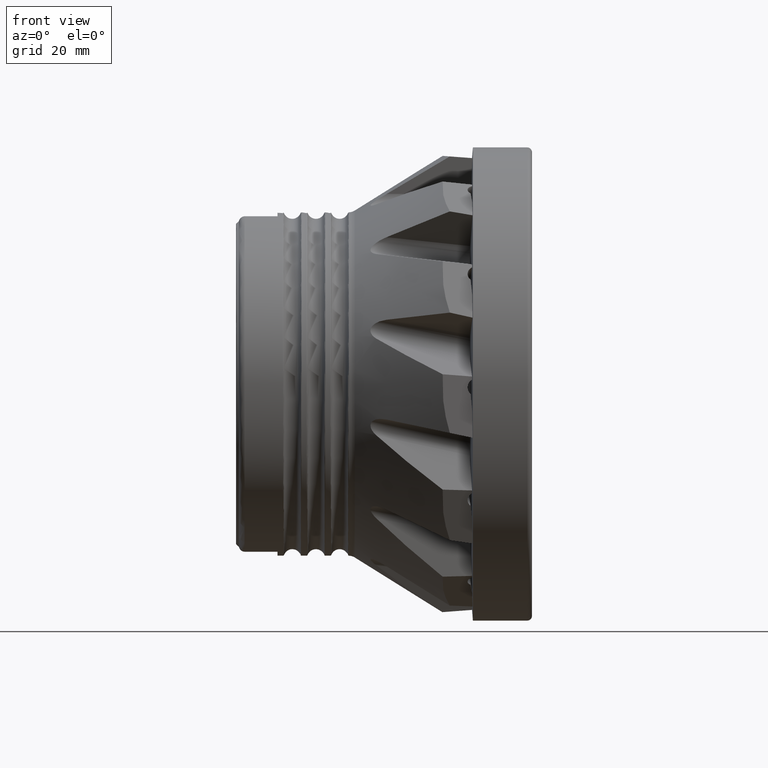
[diagram: clean part render]
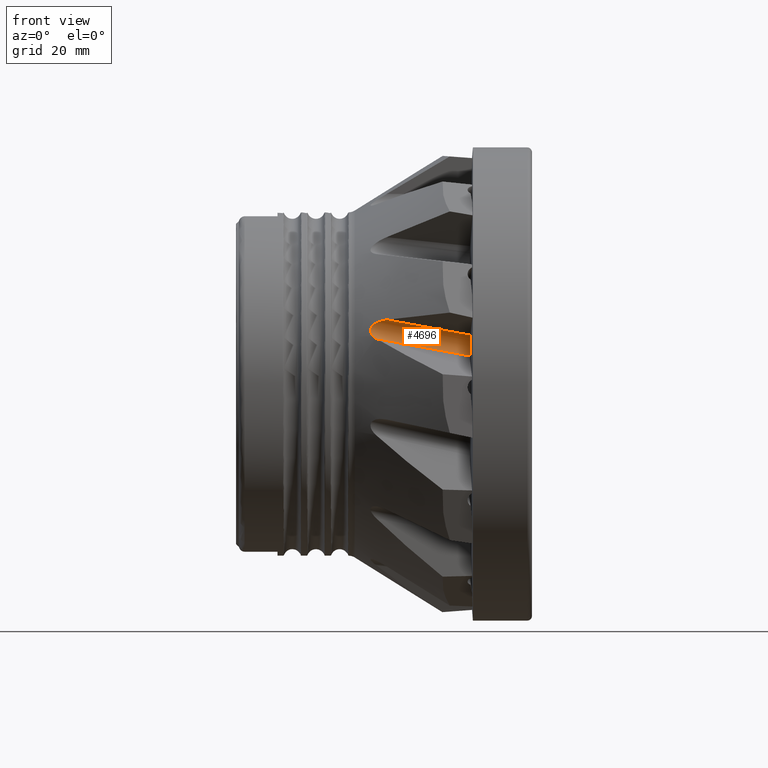
[diagram: same view with one face highlighted and labeled with its STEP entity id]
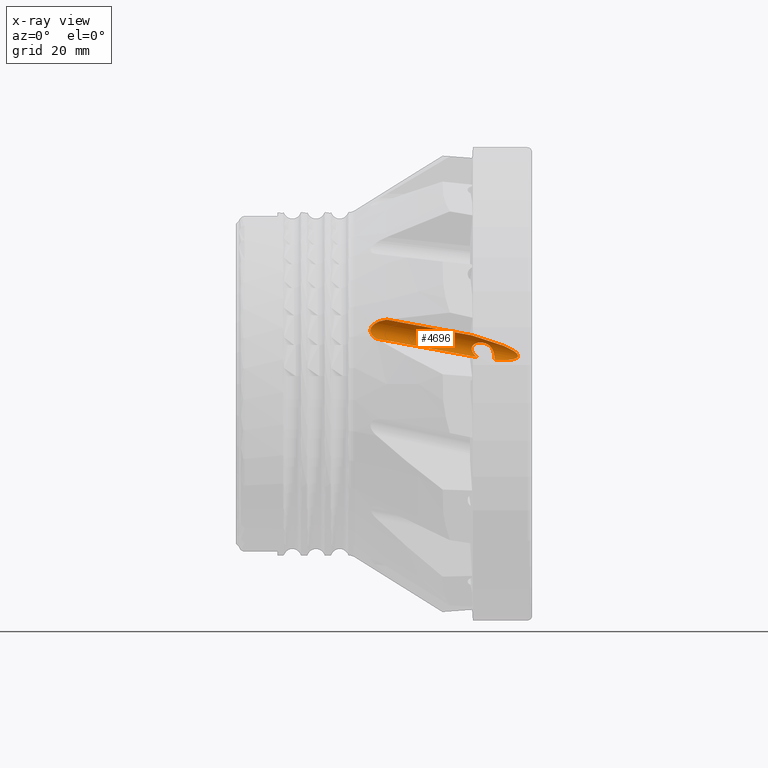
[diagram: x-ray of the same camera — body ghosted, the highlighted face saturated]
A machine part, front view. The second image highlights one B-rep face of the part: STEP entity #4696.
The next image is the same camera in x-ray: the body ghosted, the highlighted face saturated — about 0% of this face is hidden behind the body in this view.
In plain terms, the highlighted cylindrical surface (edge-blend (fillet) strip) has radius 2 mm, axis along (0.9781, -0.104, -0.1801).
Its self-contained STEP definition (entity closure, byte-faithful):
#14 = CARTESIAN_POINT ( 'NONE',  ( -3.768024339980302200, -32.50702467270754400, 4.004092392413642900 ) ) ;
#26 = CARTESIAN_POINT ( 'NONE',  ( -5.941598428582910400, -31.75197113493181800, 5.479450477798537600 ) ) ;
#49 = CARTESIAN_POINT ( 'NONE',  ( -8.706163331426138200, -31.52752429092652200, 6.920448757325848600 ) ) ;
#77 = CARTESIAN_POINT ( 'NONE',  ( -9.459359310625448100, -31.62515865549210400, 5.425309665914401300 ) ) ;
#127 = DIRECTION ( 'NONE',  ( 0.9781476007338082400, -0.1039558454088717300, -0.1800568059919455400 ) ) ;
#463 = EDGE_CURVE ( 'NONE', #6415, #3839, #8625, .T. ) ;
#603 = CARTESIAN_POINT ( 'NONE',  ( -23.95634381777281200, -30.80674944778234800, 10.85535438039640400 ) ) ;
#672 = CARTESIAN_POINT ( 'NONE',  ( -26.65831131541637000, -29.55541260701981400, 9.278411729230290600 ) ) ;
#686 = CARTESIAN_POINT ( 'NONE',  ( -5.493808748235614400, -32.19077755532535400, 6.954178745138207800 ) ) ;
#715 = CARTESIAN_POINT ( 'NONE',  ( -1.768125863742565200, -32.19346259603339200, 4.763641661216908600 ) ) ;
#742 = CARTESIAN_POINT ( 'NONE',  ( -5.111391818651620500, -32.65030233097949300, 3.987913701040926900 ) ) ;
#760 = CARTESIAN_POINT ( 'NONE',  ( -6.164926617308784900, -31.70738443793565200, 5.977610459255645400 ) ) ;
#782 = B_SPLINE_CURVE_WITH_KNOTS ( 'NONE', 3,
 ( #6496, #1449, #2927, #7953, #3661, #8682, #4376, #26, #5075, #760, #5804, #1480, #6522, #2220, #7239, #2955, #7981, #3685, #8710, #4404, #49, #5105, #792, #5831, #1503, #6552, #2251, #7254, #2978, #8008, #3715, #8732, #4434, #77, #5128, #819, #5859, #1531, #6577, #2277 ),
 .UNSPECIFIED., .F., .F.,
 ( 4, 2, 2, 2, 2, 2, 2, 2, 2, 2, 2, 2, 2, 2, 2, 2, 2, 2, 2, 4 ),
 ( 0.01069277896925567900, 0.01123377196301753600, 0.01177476495677939200, 0.01231575795054125000, 0.01285675094430310600, 0.01339774393806496300, 0.01393873693182682100, 0.01447972992558867700, 0.01502072291935053300, 0.01556171591311239200, 0.01610270890687424600, 0.01637320540375517700, 0.01664370190063610400, 0.01691419839751703200, 0.01718469489439796200, 0.01745519139127889000, 0.01772568788815981700, 0.01826668088192168200, 0.01880767387568355000, 0.01934866686944541500 ),
 .UNSPECIFIED. ) ;
#792 = CARTESIAN_POINT ( 'NONE',  ( -9.037512306617417200, -31.44377242681366300, 6.786603852662406800 ) ) ;
#819 = CARTESIAN_POINT ( 'NONE',  ( -9.203964922465550200, -31.90386342204019200, 5.028382161812589700 ) ) ;
#875 = LINE ( 'NONE', #3266, #973 ) ;
#973 = VECTOR ( 'NONE', #7535, 1000.000000000000200 ) ;
#1159 = FACE_OUTER_BOUND ( 'NONE', #7365, .T. ) ;
#1380 = CARTESIAN_POINT ( 'NONE',  ( -26.68416005009187200, -29.64916848669366800, 8.918439745501229900 ) ) ;
#1398 = CARTESIAN_POINT ( 'NONE',  ( -4.001438254549468000, -32.15259269996838800, 6.371570694593916800 ) ) ;
#1433 = CARTESIAN_POINT ( 'NONE',  ( -1.814091712693326700, -32.22708483423738100, 4.564918166406148900 ) ) ;
#1449 = CARTESIAN_POINT ( 'NONE',  ( -5.687351227808548500, -32.55684845016198600, 4.115083248091042200 ) ) ;
#1480 = CARTESIAN_POINT ( 'NONE',  ( -6.505074259793316200, -31.72954038400540400, 6.405023206519636000 ) ) ;
#1503 = CARTESIAN_POINT ( 'NONE',  ( -9.263507455957217500, -31.38973474506207100, 6.638513457409267500 ) ) ;
#1531 = CARTESIAN_POINT ( 'NONE',  ( -8.906881753381963300, -32.22285516468312500, 4.705044862810083800 ) ) ;
#1779 = ORIENTED_EDGE ( 'NONE', *, *, #2074, .F. ) ;
#1895 = DIRECTION ( 'NONE',  ( 0.9781476007338082400, -0.1039558454088717500, -0.1800568059919455100 ) ) ;
#2040 = EDGE_CURVE ( 'NONE', #3839, #3143, #875, .T. ) ;
#2074 = EDGE_CURVE ( 'NONE', #6415, #4715, #2137, .T. ) ;
#2098 = CARTESIAN_POINT ( 'NONE',  ( -24.79447797462460600, -30.30089454031148600, 10.71749052872232800 ) ) ;
#2115 = ORIENTED_EDGE ( 'NONE', *, *, #2040, .T. ) ;
#2129 = CARTESIAN_POINT ( 'NONE',  ( -26.59770633540257700, -29.80165455716810300, 8.591499821219336800 ) ) ;
#2137 = LINE ( 'NONE', #3985, #2149 ) ;
#2147 = CARTESIAN_POINT ( 'NONE',  ( -3.040788260915947600, -32.13886293995900400, 5.906170355487472700 ) ) ;
#2149 = VECTOR ( 'NONE', #1895, 1000.000000000000200 ) ;
#2181 = CARTESIAN_POINT ( 'NONE',  ( -1.954018926607186300, -32.26245404661510500, 4.416631478430799600 ) ) ;
#2220 = CARTESIAN_POINT ( 'NONE',  ( -6.948218549200027500, -31.75862167346976900, 6.721615646615075200 ) ) ;
#2251 = CARTESIAN_POINT ( 'NONE',  ( -9.447801601127505200, -31.35791923239651500, 6.436111877386079700 ) ) ;
#2258 = ORIENTED_EDGE ( 'NONE', *, *, #463, .T. ) ;
#2269 = EDGE_CURVE ( 'NONE', #4715, #6080, #7198, .T. ) ;
#2277 = CARTESIAN_POINT ( 'NONE',  ( -8.699080893073009700, -32.46177601396456700, 4.524662664754665700 ) ) ;
#2786 = CARTESIAN_POINT ( 'NONE',  ( -5.646538721153834900, -32.70334496674906400, 4.014329149210508900 ) ) ;
#2834 = CARTESIAN_POINT ( 'NONE',  ( -25.41514942414816500, -29.97331098806465400, 10.48139422242168300 ) ) ;
#2863 = CARTESIAN_POINT ( 'NONE',  ( -26.30920539410819700, -30.11390788026926700, 8.143759610569350800 ) ) ;
#2880 = CARTESIAN_POINT ( 'NONE',  ( -2.577823047601406800, -32.13836239949271300, 5.634443090391384200 ) ) ;
#2907 = CARTESIAN_POINT ( 'NONE',  ( -2.187413938055337700, -32.30541951923007100, 4.280439143186066900 ) ) ;
#2927 = CARTESIAN_POINT ( 'NONE',  ( -5.712702451482218000, -32.42097628865695200, 4.232248729861194800 ) ) ;
#2933 = CARTESIAN_POINT ( 'NONE',  ( -8.699080893073009700, -32.46177601396456700, 4.524662664754665700 ) ) ;
#2955 = CARTESIAN_POINT ( 'NONE',  ( -7.459656609300229700, -31.74711666792895300, 6.915797777592102200 ) ) ;
#2978 = CARTESIAN_POINT ( 'NONE',  ( -9.560598527804948800, -31.36600206017593000, 6.184805758011947300 ) ) ;
#3143 = VERTEX_POINT ( 'NONE', #2933 ) ;
#3170 = CARTESIAN_POINT ( 'NONE',  ( -25.66329812526939900, -30.65884817081520800, 7.647425291469995800 ) ) ;
#3266 = CARTESIAN_POINT ( 'NONE',  ( -40.04960156909214700, -29.12989657323505100, 10.29564714079249300 ) ) ;
#3561 = CARTESIAN_POINT ( 'NONE',  ( -26.00987714435875700, -29.69653480347423600, 10.14647253619812700 ) ) ;
#3590 = CARTESIAN_POINT ( 'NONE',  ( -25.83804525440497500, -30.52086667717973600, 7.750057012896880900 ) ) ;
#3609 = CARTESIAN_POINT ( 'NONE',  ( -2.243426196590162700, -32.14284130343079900, 5.402255001628741800 ) ) ;
#3643 = CARTESIAN_POINT ( 'NONE',  ( -2.703854190732722700, -32.38039714783914000, 4.121969828713041300 ) ) ;
#3661 = CARTESIAN_POINT ( 'NONE',  ( -5.771937802084955200, -32.07328123550216500, 4.651446601525554700 ) ) ;
#3685 = CARTESIAN_POINT ( 'NONE',  ( -7.997939360333093700, -31.68033526159431900, 6.992785987060570600 ) ) ;
#3703 = AXIS2_PLACEMENT_3D ( 'NONE', #3791, #127, #8098 ) ;
#3715 = CARTESIAN_POINT ( 'NONE',  ( -9.586424734676350900, -31.42107008223207700, 5.916175277725537600 ) ) ;
#3791 = CARTESIAN_POINT ( 'NONE',  ( -39.84168987827440100, -30.14082277286816900, 12.00877321546319500 ) ) ;
#3839 = VERTEX_POINT ( 'NONE', #3170 ) ;
#3985 = CARTESIAN_POINT ( 'NONE',  ( -39.42586649663891100, -29.16267517213437400, 13.70297455723575700 ) ) ;
#4286 = CARTESIAN_POINT ( 'NONE',  ( -26.43985427210584800, -29.55589953293089100, 9.721911098840367400 ) ) ;
#4335 = CARTESIAN_POINT ( 'NONE',  ( -1.941066122284998100, -32.15593572158648800, 5.127465967785083100 ) ) ;
#4359 = CARTESIAN_POINT ( 'NONE',  ( -3.500239539677712800, -32.47680453805789100, 4.020836975151025800 ) ) ;
#4376 = CARTESIAN_POINT ( 'NONE',  ( -5.850358179686759600, -31.83998940181726000, 5.140723362153376100 ) ) ;
#4404 = CARTESIAN_POINT ( 'NONE',  ( -8.533645422313856700, -31.57019942251236000, 6.957286420833918700 ) ) ;
#4434 = CARTESIAN_POINT ( 'NONE',  ( -9.542339981052530000, -31.51270214266868000, 5.661205284628855400 ) ) ;
#4651 = EDGE_CURVE ( 'NONE', #6080, #3143, #782, .T. ) ;
#4696 = ADVANCED_FACE ( 'NONE', ( #1159 ), #8203, .F. ) ;
#4715 = VERTEX_POINT ( 'NONE', #8818 ) ;
#4990 = CARTESIAN_POINT ( 'NONE',  ( -26.62059863833416200, -29.54244837270843500, 9.397333130476164700 ) ) ;
#5006 = CARTESIAN_POINT ( 'NONE',  ( -5.999559297819820000, -32.20605486368168600, 7.130852196149295900 ) ) ;
#5030 = CARTESIAN_POINT ( 'NONE',  ( -1.800136666691100700, -32.17695980740335000, 4.896130074651146000 ) ) ;
#5056 = CARTESIAN_POINT ( 'NONE',  ( -4.574453204189764800, -32.59524234919236800, 3.976404006903893500 ) ) ;
#5075 = CARTESIAN_POINT ( 'NONE',  ( -6.002854092473088000, -31.72735239459272800, 5.651457584118367600 ) ) ;
#5105 = CARTESIAN_POINT ( 'NONE',  ( -8.956501157753999500, -31.46438548644288200, 6.825030350258677100 ) ) ;
#5128 = CARTESIAN_POINT ( 'NONE',  ( -9.380494060775241400, -31.71283698489978100, 5.285018369737632500 ) ) ;
#5589 = ORIENTED_EDGE ( 'NONE', *, *, #2269, .F. ) ;
#5671 = CARTESIAN_POINT ( 'NONE',  ( -24.37176118011524300, -30.54851842456864800, 10.80822432482186800 ) ) ;
#5701 = CARTESIAN_POINT ( 'NONE',  ( -26.69030457850966400, -29.60895074556365000, 9.037972214063449500 ) ) ;
#5725 = CARTESIAN_POINT ( 'NONE',  ( -4.495172505382377000, -32.16413859031965200, 6.574134739460928900 ) ) ;
#5760 = CARTESIAN_POINT ( 'NONE',  ( -1.769093307411233400, -32.20386074532096600, 4.693511717874788000 ) ) ;
#5792 = CARTESIAN_POINT ( 'NONE',  ( -5.646538721153834900, -32.70334496674906400, 4.014329149210508900 ) ) ;
#5804 = CARTESIAN_POINT ( 'NONE',  ( -6.263900718333961700, -31.71160310919010800, 6.129283492697233300 ) ) ;
#5831 = CARTESIAN_POINT ( 'NONE',  ( -9.190457178807111700, -31.40657549802273300, 6.693812938729655200 ) ) ;
#5859 = CARTESIAN_POINT ( 'NONE',  ( -9.107211881035011600, -32.00578719083048200, 4.914151437051142300 ) ) ;
#6080 = VERTEX_POINT ( 'NONE', #2786 ) ;
#6415 = VERTEX_POINT ( 'NONE', #8165 ) ;
#6442 = CARTESIAN_POINT ( 'NONE',  ( -26.63760342809398900, -29.74554006264842000, 8.695651228633453300 ) ) ;
#6459 = CARTESIAN_POINT ( 'NONE',  ( -3.278717681068533900, -32.14151706147866600, 6.027539037950998800 ) ) ;
#6481 = CARTESIAN_POINT ( 'NONE',  ( -1.856054678931898100, -32.23934810258829500, 4.508999267391343900 ) ) ;
#6496 = CARTESIAN_POINT ( 'NONE',  ( -5.646538721153834900, -32.70334496674906400, 4.014329149210508900 ) ) ;
#6522 = CARTESIAN_POINT ( 'NONE',  ( -6.642958359360918900, -31.74263339419641000, 6.523752220499308600 ) ) ;
#6552 = CARTESIAN_POINT ( 'NONE',  ( -9.391453765448622100, -31.36548493058553800, 6.510642824895673400 ) ) ;
#6577 = CARTESIAN_POINT ( 'NONE',  ( -8.802747678127092400, -32.33840038401065400, 4.610048787493483700 ) ) ;
#7132 = CARTESIAN_POINT ( 'NONE',  ( -26.44724509357218500, -29.98131849711814200, 8.303083033078380000 ) ) ;
#7151 = CARTESIAN_POINT ( 'NONE',  ( -2.692477794637689200, -32.13808205596244200, 5.704817922361406200 ) ) ;
#7187 = CARTESIAN_POINT ( 'NONE',  ( -2.011056127602256700, -32.27366573587043100, 4.378332247449172600 ) ) ;
#7198 = B_SPLINE_CURVE_WITH_KNOTS ( 'NONE', 3,
 ( #7873, #8579, #9334, #5006, #686, #5725, #1398, #6459, #2147, #7151, #2880, #7909, #3609, #8635, #4335, #9367, #5030, #715, #5760, #1433, #6481, #2181, #7187, #2907, #7942, #3643, #8664, #4359, #14, #5056, #742, #5792 ),
 .UNSPECIFIED., .F., .F.,
 ( 4, 2, 2, 2, 2, 2, 2, 2, 2, 2, 2, 2, 2, 2, 2, 4 ),
 ( 0.0003079534583893344900, 0.003520054852313899900, 0.005126105549276183300, 0.006732156246238465800, 0.007535181594719607100, 0.007936694268960179900, 0.008338206943200750900, 0.008739719617441323700, 0.008940475954561610100, 0.009141232291681898300, 0.009341988628802184700, 0.009542744965922471100, 0.009944257640163042100, 0.01074728298864418400, 0.01155030833712532600, 0.01315635903408761400 ),
 .UNSPECIFIED. ) ;
#7239 = CARTESIAN_POINT ( 'NONE',  ( -7.115578154524996500, -31.76121345969759000, 6.800290630688933500 ) ) ;
#7254 = CARTESIAN_POINT ( 'NONE',  ( -9.532070359118797900, -31.35807463214642600, 6.274039498451564600 ) ) ;
#7365 = EDGE_LOOP ( 'NONE', ( #5589, #1779, #2258, #2115, #9091 ) ) ;
#7535 = DIRECTION ( 'NONE',  ( 0.9781476007338082400, -0.1039558454088717500, -0.1800568059919455100 ) ) ;
#7851 = CARTESIAN_POINT ( 'NONE',  ( -25.61790606668871100, -29.87241980499562600, 10.38675224997785800 ) ) ;
#7873 = CARTESIAN_POINT ( 'NONE',  ( -9.585976070505468600, -32.33400742692869300, 8.210065964249910300 ) ) ;
#7890 = CARTESIAN_POINT ( 'NONE',  ( -26.00432084556877400, -30.38408134747909600, 7.866480369239373400 ) ) ;
#7909 = CARTESIAN_POINT ( 'NONE',  ( -2.353252565570432200, -32.14075754907108300, 5.483035510070403800 ) ) ;
#7942 = CARTESIAN_POINT ( 'NONE',  ( -2.314259596377230100, -32.32472192042826000, 4.234959634549535500 ) ) ;
#7953 = CARTESIAN_POINT ( 'NONE',  ( -5.755076206059450300, -32.17767477232889200, 4.501840260236014600 ) ) ;
#7981 = CARTESIAN_POINT ( 'NONE',  ( -7.640119214119613900, -31.73038149488682100, 6.954099406851317300 ) ) ;
#8008 = CARTESIAN_POINT ( 'NONE',  ( -9.587435921002725800, -31.39742291422097200, 6.006748757346013400 ) ) ;
#8098 = DIRECTION ( 'NONE',  ( -0.1810376838643837400, 0.0000000000000000000, -0.9834761598640912000 ) ) ;
#8165 = CARTESIAN_POINT ( 'NONE',  ( -23.95634381777281200, -30.80674944778234800, 10.85535438039640400 ) ) ;
#8203 = CYLINDRICAL_SURFACE ( 'NONE', #3703, 2.000000000000000000 ) ;
#8579 = CARTESIAN_POINT ( 'NONE',  ( -8.552189557520163600, -32.29308719707259500, 7.932708948418236300 ) ) ;
#8593 = CARTESIAN_POINT ( 'NONE',  ( -26.20190521815374000, -29.62037655696639500, 9.999055439417189100 ) ) ;
#8620 = CARTESIAN_POINT ( 'NONE',  ( -25.66329812526939900, -30.65884817081520800, 7.647425291469995800 ) ) ;
#8625 = B_SPLINE_CURVE_WITH_KNOTS ( 'NONE', 3,
 ( #603, #5671, #2098, #2834, #7851, #3561, #8593, #4286, #9311, #4990, #672, #5701, #1380, #6442, #2129, #7132, #2863, #7890, #3590, #8620 ),
 .UNSPECIFIED., .F., .F.,
 ( 4, 2, 2, 2, 2, 2, 2, 2, 2, 4 ),
 ( 0.007971819056479546500, 0.009456183247600086200, 0.01019836534316035200, 0.01094054743872061700, 0.01131163848650074500, 0.01168272953428087200, 0.01205382058206100000, 0.01242491162984112900, 0.01316709372540137600, 0.01390927582096162200 ),
 .UNSPECIFIED. ) ;
#8635 = CARTESIAN_POINT ( 'NONE',  ( -2.039031727129925200, -32.15048149094344900, 5.225196258476107600 ) ) ;
#8664 = CARTESIAN_POINT ( 'NONE',  ( -2.968305979659824800, -32.41334835946455000, 4.080865176194284200 ) ) ;
#8682 = CARTESIAN_POINT ( 'NONE',  ( -5.819253490836489500, -31.90484080315449900, 4.969544430198048700 ) ) ;
#8710 = CARTESIAN_POINT ( 'NONE',  ( -8.178600047869489100, -31.64682164268682700, 6.993962796211415700 ) ) ;
#8732 = CARTESIAN_POINT ( 'NONE',  ( -9.563876968909671200, -31.47840519075987900, 5.744599099829802200 ) ) ;
#8818 = CARTESIAN_POINT ( 'NONE',  ( -9.585976070505468600, -32.33400742692869300, 8.210065964249910300 ) ) ;
#9091 = ORIENTED_EDGE ( 'NONE', *, *, #4651, .F. ) ;
#9311 = CARTESIAN_POINT ( 'NONE',  ( -26.50965475296906200, -29.54301804653909600, 9.621499533240367400 ) ) ;
#9334 = CARTESIAN_POINT ( 'NONE',  ( -7.524806735317517000, -32.25546239396207700, 7.633507768675110100 ) ) ;
#9367 = CARTESIAN_POINT ( 'NONE',  ( -1.831033259157876200, -32.17076315234930900, 4.957776949231273100 ) ) ;